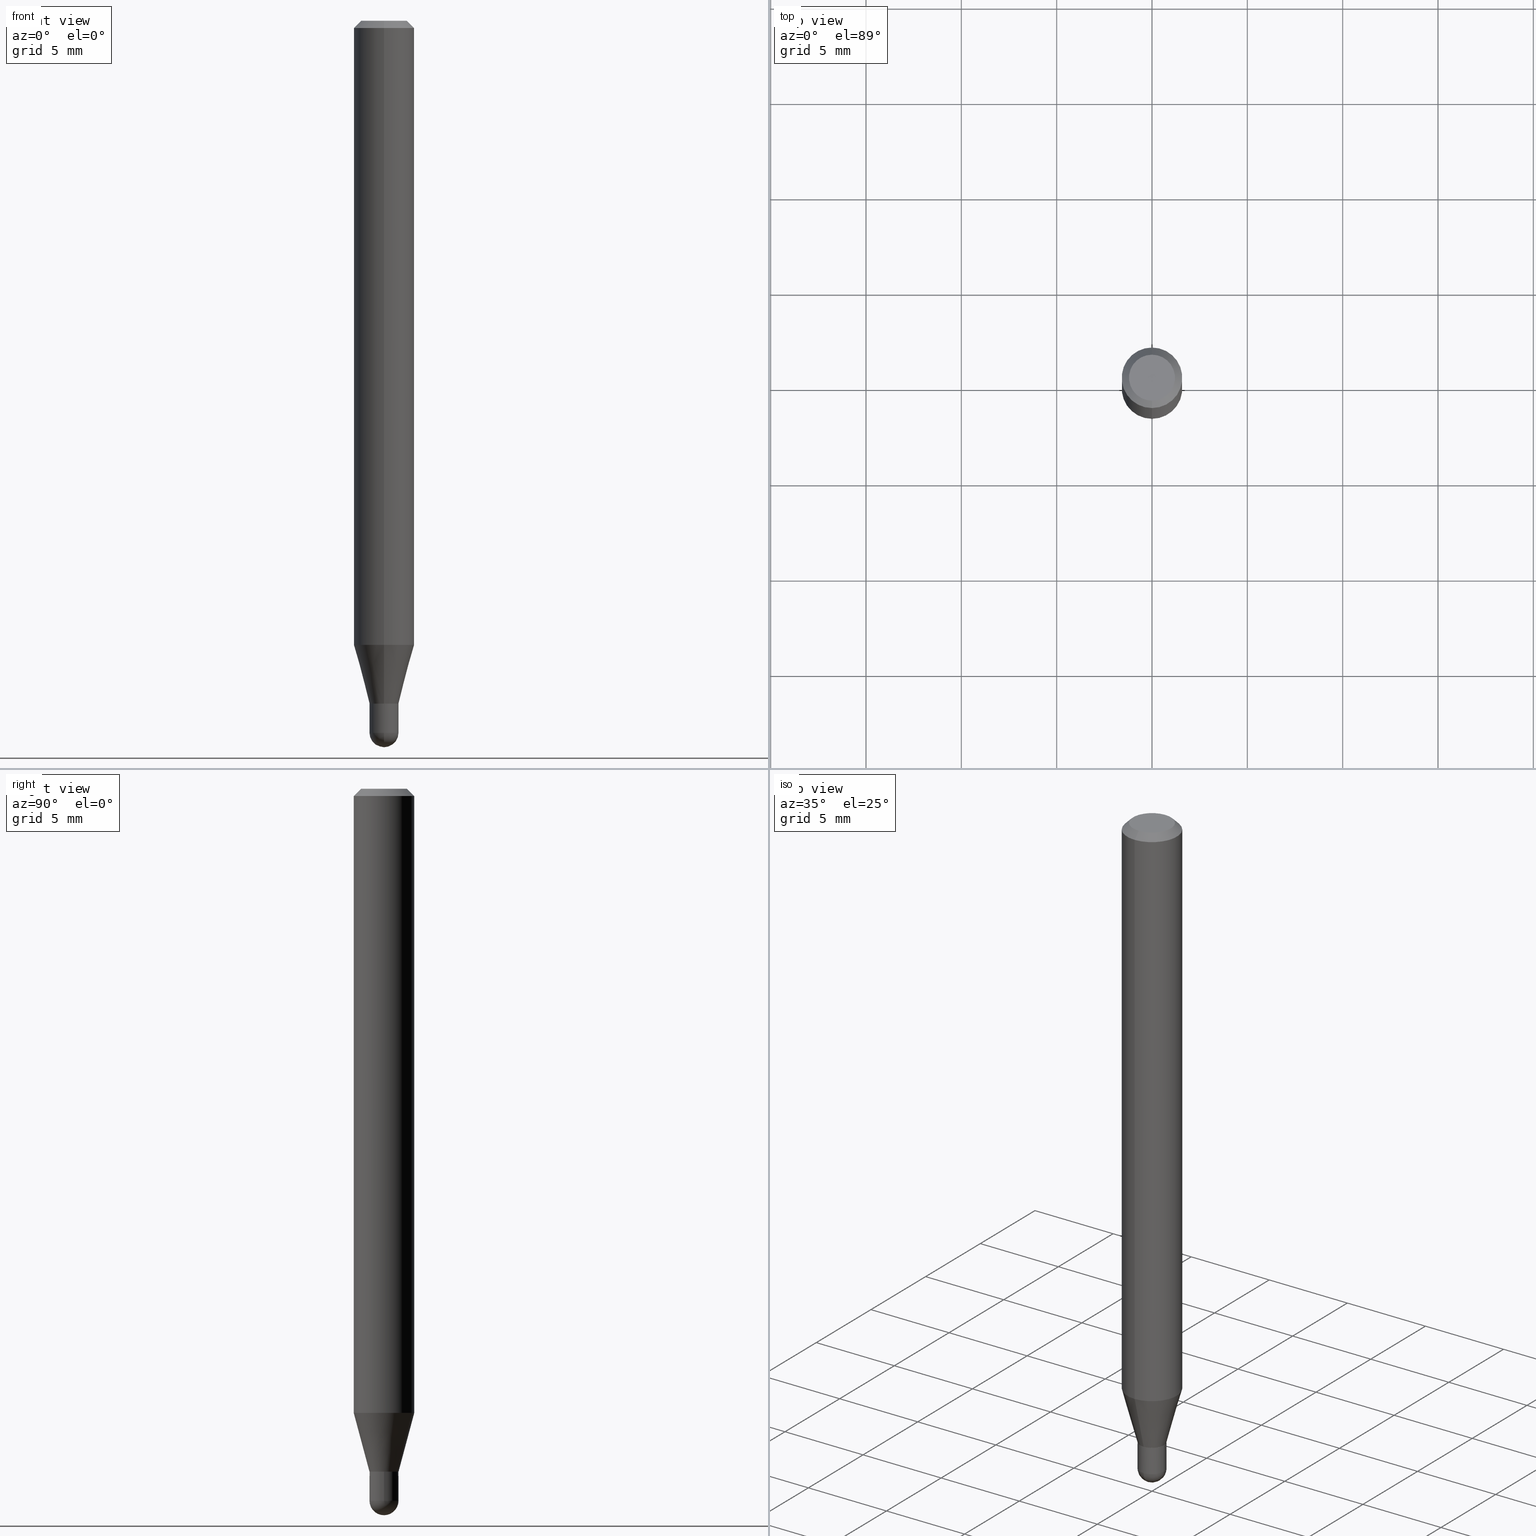
[diagram: canonical four-view strip — front | top / right | iso, engineering-drawing reading convention]
A machine part, canonical four-view strip (front | top / right | iso — engineering-drawing reading convention). The complete STEP part file that produces these views, byte-faithful:
ISO-10303-21;
HEADER;
FILE_DESCRIPTION (( 'STEP AP203' ),
    '1' );
FILE_NAME ('04372.STEP',
    '2024-03-08T18:57:41',
    ( '' ),
    ( '' ),
    'SwSTEP 2.0',
    'SolidWorks 2023',
    '' );
FILE_SCHEMA (( 'CONFIG_CONTROL_DESIGN' ));
ENDSEC;

DATA;
#1 = FACE_OUTER_BOUND ( 'NONE', #63, .T. ) ;
#2 = EDGE_CURVE ( 'NONE', #340, #117, #421, .T. ) ;
#3 = AXIS2_PLACEMENT_3D ( 'NONE', #309, #262, #409 ) ;
#4 = CC_DESIGN_APPROVAL ( #99, ( #46 ) ) ;
#5 = CARTESIAN_POINT ( 'NONE',  ( 3.446897935347290191E-29, -4.921229123411984992E-15, -1.409500000000000419 ) ) ;
#6 = ADVANCED_FACE ( 'NONE', ( #381 ), #244, .T. ) ;
#7 = PERSON_AND_ORGANIZATION_ROLE ( 'design_supplier' ) ;
#8 = CARTESIAN_POINT ( 'NONE',  ( 0.03000000000000000583, -2.094888803305880457E-16, 1.462853032738781053E-30 ) ) ;
#9 = AXIS2_PLACEMENT_3D ( 'NONE', #52, #130, #48 ) ;
#10 = AXIS2_PLACEMENT_3D ( 'NONE', #388, #433, #124 ) ;
#11 = FACE_OUTER_BOUND ( 'NONE', #322, .T. ) ;
#12 = ADVANCED_FACE ( 'NONE', ( #25 ), #190, .T. ) ;
#13 = ORIENTED_EDGE ( 'NONE', *, *, #150, .T. ) ;
#14 = CARTESIAN_POINT ( 'NONE',  ( -4.364351673553602629E-16, -0.06250000000000452416, -1.288708348754016741 ) ) ;
#15 = ORIENTED_EDGE ( 'NONE', *, *, #466, .T. ) ;
#16 = ORIENTED_EDGE ( 'NONE', *, *, #194, .F. ) ;
#17 = EDGE_CURVE ( 'NONE', #108, #506, #70, .T. ) ;
#18 = LINE ( 'NONE', #137, #19 ) ;
#19 = VECTOR ( 'NONE', #256, 39.37007874015748143 ) ;
#20 = CARTESIAN_POINT ( 'NONE',  ( 2.113864638886649494E-16, 0.02949999999999507877, -1.410000000000000586 ) ) ;
#21 = COORDINATED_UNIVERSAL_TIME_OFFSET ( 5, 0, .BEHIND. ) ;
#22 = CARTESIAN_POINT ( 'NONE',  ( -4.364351673553912750E-16, -0.06250000000000005551, -0.01499999999999984852 ) ) ;
#23 = DIRECTION ( 'NONE',  ( -2.445468806185136597E-29, 3.491481338843145583E-15, 1.000000000000000000 ) ) ;
#24 = EDGE_CURVE ( 'NONE', #336, #252, #240, .T. ) ;
#25 = FACE_OUTER_BOUND ( 'NONE', #333, .T. ) ;
#26 = CARTESIAN_POINT ( 'NONE',  ( 1.601803669959520186E-45, -2.286938290152406368E-31, -6.550069990919144939E-17 ) ) ;
#27 = VECTOR ( 'NONE', #326, 39.37007874015748143 ) ;
#28 = ORIENTED_EDGE ( 'NONE', *, *, #148, .T. ) ;
#29 = DIRECTION ( 'NONE',  ( -6.982962677686266711E-15, -1.000000000000000000, 3.491471531331667056E-15 ) ) ;
#30 = CARTESIAN_POINT ( 'NONE',  ( 2.094888803306224597E-16, 0.02999999999999507921, -1.410000000000000364 ) ) ;
#31 = VERTEX_POINT ( 'NONE', #349 ) ;
#32 = ADVANCED_FACE ( 'NONE', ( #346 ), #314, .F. ) ;
#33 = CYLINDRICAL_SURFACE ( 'NONE', #202, 0.03000000000000033890 ) ;
#34 = DIRECTION ( 'NONE',  ( -2.445475654733798160E-29, 3.491471531331666661E-15, 1.000000000000000000 ) ) ;
#35 = CLOSED_SHELL ( 'NONE', ( #394, #112, #199, #255, #212 ) ) ;
#36 = AXIS2_PLACEMENT_3D ( 'NONE', #284, #357, #472 ) ;
#37 = CARTESIAN_POINT ( 'NONE',  ( 0.000000000000000000, 0.000000000000000000, 0.000000000000000000 ) ) ;
#38 = CARTESIAN_POINT ( 'NONE',  ( 0.000000000000000000, 0.000000000000000000, 0.000000000000000000 ) ) ;
#39 = CARTESIAN_POINT ( 'NONE',  ( 4.440892098500625669E-16, 0.06250000000000000000, -2.182169707082291663E-16 ) ) ;
#40 = ADVANCED_FACE ( 'NONE', ( #307 ), #226, .T. ) ;
#41 = DIRECTION ( 'NONE',  ( -6.982962677686265922E-15, -1.000000000000000000, 0.000000000000000000 ) ) ;
#42 = VERTEX_POINT ( 'NONE', #492 ) ;
#43 = LOCAL_TIME ( 13, 57, 41.00000000000000000, #476 ) ;
#44 = DATE_AND_TIME ( #210, #216 ) ;
#45 = CARTESIAN_POINT ( 'NONE',  ( 3.286260152890810419E-16, 0.02999999999999555106, -1.409999999999999920 ) ) ;
#46 = PRODUCT_DEFINITION ( 'UNKNOWN', '', #313, #397 ) ;
#47 = DIRECTION ( 'NONE',  ( 0.000000000000000000, 0.000000000000000000, 1.000000000000000000 ) ) ;
#48 = DIRECTION ( 'NONE',  ( 1.000000000000000000, -6.982962677686266711E-15, 0.000000000000000000 ) ) ;
#49 = AXIS2_PLACEMENT_3D ( 'NONE', #291, #126, #368 ) ;
#50 = VECTOR ( 'NONE', #278, 39.37007874015748143 ) ;
#51 = CARTESIAN_POINT ( 'NONE',  ( 3.448120673174657016E-29, -4.922974859177651471E-15, -1.410000000000000586 ) ) ;
#52 = CARTESIAN_POINT ( 'NONE',  ( 3.594839145092151380E-29, -5.132477568099425596E-15, -1.470000000000000417 ) ) ;
#53 = ORIENTED_EDGE ( 'NONE', *, *, #89, .T. ) ;
#54 = DIRECTION ( 'NONE',  ( -2.445475654733798440E-29, 3.491471531331666661E-15, 1.000000000000000000 ) ) ;
#55 = ORIENTED_EDGE ( 'NONE', *, *, #444, .F. ) ;
#56 = CARTESIAN_POINT ( 'NONE',  ( 4.440892098500942692E-16, 0.06249999999999995143, -0.01500000000000028394 ) ) ;
#57 = ORIENTED_EDGE ( 'NONE', *, *, #243, .F. ) ;
#58 = CC_DESIGN_PERSON_AND_ORGANIZATION_ASSIGNMENT ( #323, #107, ( #264 ) ) ;
#59 = AXIS2_PLACEMENT_3D ( 'NONE', #412, #454, #238 ) ;
#60 = CIRCLE ( 'NONE', #67, 0.02949999999999999845 ) ;
#61 = ORIENTED_EDGE ( 'NONE', *, *, #504, .T. ) ;
#62 = CARTESIAN_POINT ( 'NONE',  ( 0.000000000000000000, 0.000000000000000000, 0.000000000000000000 ) ) ;
#63 = EDGE_LOOP ( 'NONE', ( #68, #61, #425, #88 ) ) ;
#64 = EDGE_CURVE ( 'NONE', #42, #367, #374, .T. ) ;
#65 = VERTEX_POINT ( 'NONE', #406 ) ;
#66 = CIRCLE ( 'NONE', #200, 0.04749999999999999362 ) ;
#67 = AXIS2_PLACEMENT_3D ( 'NONE', #411, #445, #448 ) ;
#68 = ORIENTED_EDGE ( 'NONE', *, *, #484, .F. ) ;
#69 = DATE_AND_TIME ( #281, #43 ) ;
#70 = LINE ( 'NONE', #347, #209 ) ;
#71 = LENGTH_MEASURE_WITH_UNIT ( LENGTH_MEASURE( 0.02539999999999999897 ), #354 );
#72 = ORIENTED_EDGE ( 'NONE', *, *, #484, .T. ) ;
#73 = CC_DESIGN_PERSON_AND_ORGANIZATION_ASSIGNMENT ( #449, #134, ( #408 ) ) ;
#74 =( CONVERSION_BASED_UNIT ( 'INCH', #71 ) LENGTH_UNIT ( ) NAMED_UNIT ( #213 ) );
#75 = CARTESIAN_POINT ( 'NONE',  ( -2.059973989917103533E-16, -0.02950000000000492159, -1.410000000000000586 ) ) ;
#76 = CIRCLE ( 'NONE', #469, 0.03000000000000000583 ) ;
#77 = CALENDAR_DATE ( 2024, 8, 3 ) ;
#78 = DIRECTION ( 'NONE',  ( 1.000000000000000000, -6.982962677686268288E-15, 0.000000000000000000 ) ) ;
#79 = ORIENTED_EDGE ( 'NONE', *, *, #24, .T. ) ;
#80 = PERSON_AND_ORGANIZATION_ROLE ( 'creator' ) ;
#81 = SPHERICAL_SURFACE ( 'NONE', #337, 0.02999999999999997807 ) ;
#82 = CC_DESIGN_DATE_AND_TIME_ASSIGNMENT ( #69, #196, ( #46 ) ) ;
#83 = UNCERTAINTY_MEASURE_WITH_UNIT (LENGTH_MEASURE( 1.000000000000000082E-05 ), #74, 'distance_accuracy_value', 'NONE');
#84 = APPROVAL_DATE_TIME ( #44, #510 ) ;
#85 = CYLINDRICAL_SURFACE ( 'NONE', #305, 0.03000000000000000583 ) ;
#86 = AXIS2_PLACEMENT_3D ( 'NONE', #500, #34, #145 ) ;
#87 = AXIS2_PLACEMENT_3D ( 'NONE', #38, #47, #129 ) ;
#88 = ORIENTED_EDGE ( 'NONE', *, *, #64, .F. ) ;
#89 = EDGE_CURVE ( 'NONE', #169, #42, #217, .T. ) ;
#90 = DIRECTION ( 'NONE',  ( -2.445468806185136597E-29, 3.491481338843145583E-15, 1.000000000000000000 ) ) ;
#91 = CARTESIAN_POINT ( 'NONE',  ( 3.668213482100713880E-31, -5.237207296997522795E-17, -0.01500000000000006710 ) ) ;
#92 = EDGE_LOOP ( 'NONE', ( #28, #101 ) ) ;
#93 = CONICAL_SURFACE ( 'NONE', #160, 0.03000000000000047420, 0.2617993877991573459 ) ;
#94 = CARTESIAN_POINT ( 'NONE',  ( 3.448120673174655335E-29, -4.922974859177649894E-15, -1.409999999999999920 ) ) ;
#95 = DIRECTION ( 'NONE',  ( -6.982962677686265922E-15, -1.000000000000000000, 0.000000000000000000 ) ) ;
#96 = ORIENTED_EDGE ( 'NONE', *, *, #139, .F. ) ;
#97 = DIRECTION ( 'NONE',  ( -6.982962677686266711E-15, -1.000000000000000000, 3.491471531331667056E-15 ) ) ;
#98 = CARTESIAN_POINT ( 'NONE',  ( 3.594839145092151380E-29, -5.132477568099425596E-15, -1.470000000000000417 ) ) ;
#99 = APPROVAL ( #463, 'UNSPECIFIED' ) ;
#100 = ORIENTED_EDGE ( 'NONE', *, *, #495, .T. ) ;
#101 = ORIENTED_EDGE ( 'NONE', *, *, #462, .T. ) ;
#102 = AXIS2_PLACEMENT_3D ( 'NONE', #30, #497, #422 ) ;
#103 = LINE ( 'NONE', #494, #400 ) ;
#104 = ORIENTED_EDGE ( 'NONE', *, *, #142, .F. ) ;
#105 = ADVANCED_FACE ( 'NONE', ( #365 ), #261, .F. ) ;
#106 = DIRECTION ( 'NONE',  ( -2.445475654733798440E-29, 3.491471531331666661E-15, 1.000000000000000000 ) ) ;
#107 = PERSON_AND_ORGANIZATION_ROLE ( 'classification_officer' ) ;
#108 = VERTEX_POINT ( 'NONE', #135 ) ;
#109 = DIRECTION ( 'NONE',  ( -2.445475654733798440E-29, 3.491471531331666661E-15, 1.000000000000000000 ) ) ;
#110 = ORIENTED_EDGE ( 'NONE', *, *, #441, .F. ) ;
#111 = FACE_OUTER_BOUND ( 'NONE', #419, .T. ) ;
#112 = ADVANCED_FACE ( 'NONE', ( #11 ), #329, .T. ) ;
#113 = CIRCLE ( 'NONE', #59, 0.06250000000000000000 ) ;
#114 = VECTOR ( 'NONE', #123, 39.37007874015748143 ) ;
#115 = ORIENTED_EDGE ( 'NONE', *, *, #424, .F. ) ;
#116 = EDGE_CURVE ( 'NONE', #369, #252, #236, .T. ) ;
#117 = VERTEX_POINT ( 'NONE', #14 ) ;
#118 = APPROVAL_ROLE ( '' ) ;
#119 = LINE ( 'NONE', #39, #152 ) ;
#120 = DIRECTION ( 'NONE',  ( 5.024295867788190974E-15, 0.7071067811865681119, 0.7071067811865270336 ) ) ;
#121 = ORIENTED_EDGE ( 'NONE', *, *, #174, .F. ) ;
#122 = DIRECTION ( 'NONE',  ( -2.445468806185136597E-29, 3.491481338843145583E-15, 1.000000000000000000 ) ) ;
#123 = DIRECTION ( 'NONE',  ( -2.445468806185136877E-29, 3.491481338843145188E-15, 1.000000000000000000 ) ) ;
#124 = DIRECTION ( 'NONE',  ( -6.982962677686265922E-15, -1.000000000000000000, 0.000000000000000000 ) ) ;
#125 = DIRECTION ( 'NONE',  ( -2.445475654733798440E-29, 3.491471531331666661E-15, 1.000000000000000000 ) ) ;
#126 = DIRECTION ( 'NONE',  ( -2.445475654733798440E-29, 3.491471531331666661E-15, 1.000000000000000000 ) ) ;
#127 = ORIENTED_EDGE ( 'NONE', *, *, #2, .F. ) ;
#128 = ADVANCED_FACE ( 'NONE', ( #172 ), #93, .T. ) ;
#129 = DIRECTION ( 'NONE',  ( 1.000000000000000000, 0.000000000000000000, 0.000000000000000000 ) ) ;
#130 = DIRECTION ( 'NONE',  ( -2.445468806185136597E-29, 3.491481338843145583E-15, 1.000000000000000000 ) ) ;
#131 = ORIENTED_EDGE ( 'NONE', *, *, #424, .T. ) ;
#132 = CONICAL_SURFACE ( 'NONE', #288, 0.02949999999999999845, 0.7853981633974739252 ) ;
#133 = CARTESIAN_POINT ( 'NONE',  ( 3.448120673174655335E-29, -4.922974859177649894E-15, -1.409999999999999920 ) ) ;
#134 = PERSON_AND_ORGANIZATION_ROLE ( 'design_owner' ) ;
#135 = CARTESIAN_POINT ( 'NONE',  ( 3.840629472727447874E-16, 0.04749999999999999362, -2.313455976474456035E-16 ) ) ;
#136 = VERTEX_POINT ( 'NONE', #20 ) ;
#137 = CARTESIAN_POINT ( 'NONE',  ( 2.131628207280678885E-16, 0.02999999999999555106, -1.409999999999999920 ) ) ;
#138 = CARTESIAN_POINT ( 'NONE',  ( 3.592273646224612654E-29, -5.136151508496865947E-15, -1.470000000000000195 ) ) ;
#139 = EDGE_CURVE ( 'NONE', #451, #136, #318, .T. ) ;
#140 = ORIENTED_EDGE ( 'NONE', *, *, #413, .F. ) ;
#141 = DIRECTION ( 'NONE',  ( 1.000000000000000000, -6.982962677686266711E-15, 0.000000000000000000 ) ) ;
#142 = EDGE_CURVE ( 'NONE', #176, #506, #113, .T. ) ;
#143 = ORIENTED_EDGE ( 'NONE', *, *, #219, .F. ) ;
#144 = CIRCLE ( 'NONE', #320, 0.03000000000000019665 ) ;
#145 = DIRECTION ( 'NONE',  ( -6.982962677686265922E-15, -1.000000000000000000, 3.491471531331666661E-15 ) ) ;
#146 = APPLICATION_PROTOCOL_DEFINITION ( 'international standard', 'config_control_design', 1994, #228 ) ;
#147 = EDGE_LOOP ( 'NONE', ( #96, #110 ) ) ;
#148 = EDGE_CURVE ( 'NONE', #108, #220, #66, .T. ) ;
#149 = ORIENTED_EDGE ( 'NONE', *, *, #89, .F. ) ;
#150 = EDGE_CURVE ( 'NONE', #117, #176, #103, .T. ) ;
#151 = CLOSED_SHELL ( 'NONE', ( #378, #231, #40, #157, #290, #128, #12, #6, #280, #32, #447, #105 ) ) ;
#152 = VECTOR ( 'NONE', #201, 39.37007874015748143 ) ;
#153 = CC_DESIGN_APPROVAL ( #276, ( #264 ) ) ;
#154 = VERTEX_POINT ( 'NONE', #308 ) ;
#155 = DIRECTION ( 'NONE',  ( -2.445468806185136597E-29, 3.491481338843145583E-15, 1.000000000000000000 ) ) ;
#156 = CARTESIAN_POINT ( 'NONE',  ( -3.773273898774340269E-16, -0.04749999999999999362, 1.003441978290627047E-16 ) ) ;
#157 = ADVANCED_FACE ( 'NONE', ( #460 ), #379, .T. ) ;
#158 = PERSON_AND_ORGANIZATION ( #475, #227 ) ;
#159 = DIRECTION ( 'NONE',  ( 2.445475654733798160E-29, -3.491471531331666661E-15, -1.000000000000000000 ) ) ;
#160 = AXIS2_PLACEMENT_3D ( 'NONE', #300, #332, #339 ) ;
#161 = APPROVAL_PERSON_ORGANIZATION ( #186, #99, #118 ) ;
#162 =( NAMED_UNIT ( * ) PLANE_ANGLE_UNIT ( ) SI_UNIT ( $, .RADIAN. ) );
#163 = DIRECTION ( 'NONE',  ( -6.982962677686265922E-15, -1.000000000000000000, 0.000000000000000000 ) ) ;
#164 = SECURITY_CLASSIFICATION_LEVEL ( 'unclassified' ) ;
#165 = DIRECTION ( 'NONE',  ( 1.000000000000000000, -6.982962677686266711E-15, 4.876176775795935793E-29 ) ) ;
#166 = DIRECTION ( 'NONE',  ( -2.445468806185136597E-29, 3.491481338843145583E-15, 1.000000000000000000 ) ) ;
#167 = EDGE_CURVE ( 'NONE', #117, #503, #417, .T. ) ;
#168 = CIRCLE ( 'NONE', #179, 0.02999999999999999889 ) ;
#169 = VERTEX_POINT ( 'NONE', #274 ) ;
#170 = MANIFOLD_SOLID_BREP ( 'Body-Move/Copy2[1]', #35 ) ;
#171 = DIRECTION ( 'NONE',  ( -6.982962677686265922E-15, -1.000000000000000000, 0.000000000000000000 ) ) ;
#172 = FACE_OUTER_BOUND ( 'NONE', #353, .T. ) ;
#173 = EDGE_LOOP ( 'NONE', ( #225, #79, #296, #140 ) ) ;
#174 = EDGE_CURVE ( 'NONE', #503, #117, #251, .T. ) ;
#175 = DIRECTION ( 'NONE',  ( 1.000000000000000000, -7.105427357601001070E-15, 4.926315508542082329E-29 ) ) ;
#176 = VERTEX_POINT ( 'NONE', #22 ) ;
#177 = LOCAL_TIME ( 13, 57, 41.00000000000000000, #384 ) ;
#178 = AXIS2_PLACEMENT_3D ( 'NONE', #62, #109, #191 ) ;
#179 = AXIS2_PLACEMENT_3D ( 'NONE', #362, #155, #78 ) ;
#180 = CIRCLE ( 'NONE', #350, 0.04749999999999999362 ) ;
#181 = DIRECTION ( 'NONE',  ( -2.445475654733798440E-29, 3.491471531331666661E-15, 1.000000000000000000 ) ) ;
#182 = ORIENTED_EDGE ( 'NONE', *, *, #495, .F. ) ;
#183 = EDGE_CURVE ( 'NONE', #65, #169, #418, .T. ) ;
#184 = DIRECTION ( 'NONE',  ( -6.982962677686265922E-15, -1.000000000000000000, 4.370956789862821150E-15 ) ) ;
#185 = ORIENTED_EDGE ( 'NONE', *, *, #2, .T. ) ;
#186 = PERSON_AND_ORGANIZATION ( #475, #227 ) ;
#187 = AXIS2_PLACEMENT_3D ( 'NONE', #294, #452, #370 ) ;
#188 = AXIS2_PLACEMENT_3D ( 'NONE', #321, #159, #245 ) ;
#189 = MANIFOLD_SOLID_BREP ( 'Body-Move/Copy2[2]', #151 ) ;
#190 = CYLINDRICAL_SURFACE ( 'NONE', #295, 0.06250000000000000000 ) ;
#191 = DIRECTION ( 'NONE',  ( -6.982962677686265922E-15, -1.000000000000000000, 3.491471531331666661E-15 ) ) ;
#192 = APPROVAL_STATUS ( 'not_yet_approved' ) ;
#193 = EDGE_LOOP ( 'NONE', ( #100, #131, #257, #127 ) ) ;
#194 = EDGE_CURVE ( 'NONE', #220, #176, #302, .T. ) ;
#195 = ADVANCED_BREP_SHAPE_REPRESENTATION ( '04372', ( #170, #189, #87 ), #382 ) ;
#196 = DATE_TIME_ROLE ( 'creation_date' ) ;
#197 = FACE_OUTER_BOUND ( 'NONE', #268, .T. ) ;
#198 = DIRECTION ( 'NONE',  ( -2.445475654733798160E-29, 3.491471531331666661E-15, 1.000000000000000000 ) ) ;
#199 = ADVANCED_FACE ( 'NONE', ( #111 ), #427, .F. ) ;
#200 = AXIS2_PLACEMENT_3D ( 'NONE', #26, #383, #29 ) ;
#201 = DIRECTION ( 'NONE',  ( -2.445475654733798160E-29, 3.491471531331666661E-15, 1.000000000000000000 ) ) ;
#202 = AXIS2_PLACEMENT_3D ( 'NONE', #477, #282, #434 ) ;
#203 = ORIENTED_EDGE ( 'NONE', *, *, #174, .T. ) ;
#204 = CARTESIAN_POINT ( 'NONE',  ( 2.096101070492640071E-16, 0.02949999999999507877, -1.410000000000000586 ) ) ;
#205 = DATE_AND_TIME ( #77, #237 ) ;
#206 = CARTESIAN_POINT ( 'NONE',  ( -2.094888803305568117E-16, -0.03000000000000539388, -1.409999999999999920 ) ) ;
#207 = CC_DESIGN_APPROVAL ( #510, ( #313 ) ) ;
#208 = LINE ( 'NONE', #8, #246 ) ;
#209 = VECTOR ( 'NONE', #499, 39.37007874015748143 ) ;
#210 = CALENDAR_DATE ( 2024, 8, 3 ) ;
#211 = DIRECTION ( 'NONE',  ( -2.445468806185136597E-29, 3.491481338843145583E-15, 1.000000000000000000 ) ) ;
#212 = ADVANCED_FACE ( 'NONE', ( #197 ), #233, .T. ) ;
#213 = DIMENSIONAL_EXPONENTS ( 1.000000000000000000, 0.000000000000000000, 0.000000000000000000, 0.000000000000000000, 0.000000000000000000, 0.000000000000000000, 0.000000000000000000 ) ;
#214 = VERTEX_POINT ( 'NONE', #440 ) ;
#215 = DIRECTION ( 'NONE',  ( 1.000000000000000000, -6.982962677686266711E-15, 0.000000000000000000 ) ) ;
#216 = LOCAL_TIME ( 13, 57, 41.00000000000000000, #436 ) ;
#217 = CIRCLE ( 'NONE', #9, 0.03000000000000000583 ) ;
#218 = AXIS2_PLACEMENT_3D ( 'NONE', #51, #373, #491 ) ;
#219 = EDGE_CURVE ( 'NONE', #136, #252, #287, .T. ) ;
#220 = VERTEX_POINT ( 'NONE', #156 ) ;
#221 = DIRECTION ( 'NONE',  ( 7.105427357601001070E-15, 1.000000000000000000, 0.000000000000000000 ) ) ;
#222 = ORIENTED_EDGE ( 'NONE', *, *, #148, .F. ) ;
#223 = DIRECTION ( 'NONE',  ( -6.982962677686265922E-15, -1.000000000000000000, 3.483106191921935554E-15 ) ) ;
#224 = DATE_AND_TIME ( #464, #177 ) ;
#225 = ORIENTED_EDGE ( 'NONE', *, *, #466, .F. ) ;
#226 = CONICAL_SURFACE ( 'NONE', #3, 0.06250000000000000000, 0.7853981633974483900 ) ;
#227 = ORGANIZATION ( 'UNSPECIFIED', 'UNSPECIFIED', '' ) ;
#228 = APPLICATION_CONTEXT ( 'configuration controlled 3d designs of mechanical parts and assemblies' ) ;
#229 = SHAPE_DEFINITION_REPRESENTATION ( #331, #195 ) ;
#230 = ORIENTED_EDGE ( 'NONE', *, *, #183, .F. ) ;
#231 = ADVANCED_FACE ( 'NONE', ( #315 ), #132, .T. ) ;
#232 = EDGE_LOOP ( 'NONE', ( #496, #301, #235, #376 ) ) ;
#233 = CYLINDRICAL_SURFACE ( 'NONE', #458, 0.03000000000000000583 ) ;
#234 = PERSON_AND_ORGANIZATION ( #475, #227 ) ;
#235 = ORIENTED_EDGE ( 'NONE', *, *, #116, .F. ) ;
#236 = CIRCLE ( 'NONE', #49, 0.03000000000000019665 ) ;
#237 = LOCAL_TIME ( 13, 57, 41.00000000000000000, #391 ) ;
#238 = DIRECTION ( 'NONE',  ( -6.982962677686265922E-15, -1.000000000000000000, 3.483106191921935554E-15 ) ) ;
#239 = EDGE_LOOP ( 'NONE', ( #16, #222, #429, #330 ) ) ;
#240 = LINE ( 'NONE', #461, #438 ) ;
#241 = DIRECTION ( 'NONE',  ( -2.445475654733798440E-29, 3.491471531331666661E-15, 1.000000000000000000 ) ) ;
#242 = ORIENTED_EDGE ( 'NONE', *, *, #334, .F. ) ;
#243 = EDGE_CURVE ( 'NONE', #503, #506, #119, .T. ) ;
#244 = CONICAL_SURFACE ( 'NONE', #457, 0.06250000000000000000, 0.7853981633974483900 ) ;
#245 = DIRECTION ( 'NONE',  ( 6.982962677686265922E-15, 1.000000000000000000, -3.491471531331666661E-15 ) ) ;
#246 = VECTOR ( 'NONE', #359, 39.37007874015748143 ) ;
#247 = LINE ( 'NONE', #250, #114 ) ;
#248 = FACE_OUTER_BOUND ( 'NONE', #410, .T. ) ;
#249 = PERSON_AND_ORGANIZATION ( #475, #227 ) ;
#250 = CARTESIAN_POINT ( 'NONE',  ( -0.03000000000000000583, 2.131628207280300972E-16, -1.475680527076471882E-30 ) ) ;
#251 = CIRCLE ( 'NONE', #426, 0.06250000000000000000 ) ;
#252 = VERTEX_POINT ( 'NONE', #396 ) ;
#253 = DIRECTION ( 'NONE',  ( 1.000000000000000000, -6.982962677686266711E-15, 0.000000000000000000 ) ) ;
#254 = ORIENTED_EDGE ( 'NONE', *, *, #351, .F. ) ;
#255 = ADVANCED_FACE ( 'NONE', ( #1 ), #81, .T. ) ;
#256 = DIRECTION ( 'NONE',  ( 1.839019923739648830E-15, 0.2588190451025317862, 0.9659258262890653146 ) ) ;
#257 = ORIENTED_EDGE ( 'NONE', *, *, #167, .F. ) ;
#258 = CARTESIAN_POINT ( 'NONE',  ( 3.592273646224612654E-29, -5.136151508496865947E-15, -1.470000000000000195 ) ) ;
#259 = ORIENTED_EDGE ( 'NONE', *, *, #183, .T. ) ;
#260 = CARTESIAN_POINT ( 'NONE',  ( 3.592273646224612654E-29, -5.136151508496865947E-15, -1.470000000000000195 ) ) ;
#261 = CYLINDRICAL_SURFACE ( 'NONE', #187, 0.03000000000000033890 ) ;
#262 = DIRECTION ( 'NONE',  ( 2.445475654733798440E-29, -3.491471531331666661E-15, -1.000000000000000000 ) ) ;
#263 = ORIENTED_EDGE ( 'NONE', *, *, #116, .T. ) ;
#264 = SECURITY_CLASSIFICATION ( '', '', #164 ) ;
#265 = EDGE_CURVE ( 'NONE', #169, #214, #208, .T. ) ;
#266 = AXIS2_PLACEMENT_3D ( 'NONE', #91, #338, #223 ) ;
#267 = APPROVAL_ROLE ( '' ) ;
#268 = EDGE_LOOP ( 'NONE', ( #242, #286, #259, #453, #443 ) ) ;
#269 = CARTESIAN_POINT ( 'NONE',  ( 3.594839145092151380E-29, -5.132477568099425596E-15, -1.470000000000000417 ) ) ;
#270 = ORIENTED_EDGE ( 'NONE', *, *, #142, .T. ) ;
#271 = CALENDAR_DATE ( 2024, 8, 3 ) ;
#272 = ORIENTED_EDGE ( 'NONE', *, *, #24, .F. ) ;
#273 = CIRCLE ( 'NONE', #328, 0.03000000000000047420 ) ;
#274 = CARTESIAN_POINT ( 'NONE',  ( 0.03000000000000000583, -5.237222008264718177E-15, -1.470000000000000417 ) ) ;
#275 = CARTESIAN_POINT ( 'NONE',  ( -2.094888803305568117E-16, -0.03000000000000539388, -1.409999999999999920 ) ) ;
#276 = APPROVAL ( #192, 'UNSPECIFIED' ) ;
#277 = LINE ( 'NONE', #75, #50 ) ;
#278 = DIRECTION ( 'NONE',  ( -4.937700262164674260E-15, -0.7071067811865632269, 0.7071067811865319186 ) ) ;
#279 = CONICAL_SURFACE ( 'NONE', #218, 0.02949999999999999845, 0.7853981633974739252 ) ;
#280 = ADVANCED_FACE ( 'NONE', ( #317 ), #474, .F. ) ;
#281 = CALENDAR_DATE ( 2024, 8, 3 ) ;
#282 = DIRECTION ( 'NONE',  ( -2.445475654733798440E-29, 3.491471531331666661E-15, 1.000000000000000000 ) ) ;
#283 = APPROVAL_STATUS ( 'not_yet_approved' ) ;
#284 = CARTESIAN_POINT ( 'NONE',  ( 3.448111016721043229E-29, -4.922988687768836490E-15, -1.410000000000000364 ) ) ;
#285 = EDGE_CURVE ( 'NONE', #451, #369, #277, .T. ) ;
#286 = ORIENTED_EDGE ( 'NONE', *, *, #405, .T. ) ;
#287 = LINE ( 'NONE', #204, #390 ) ;
#288 = AXIS2_PLACEMENT_3D ( 'NONE', #355, #241, #41 ) ;
#289 = DIRECTION ( 'NONE',  ( -6.982962677686265922E-15, -1.000000000000000000, 0.000000000000000000 ) ) ;
#290 = ADVANCED_FACE ( 'NONE', ( #392 ), #403, .T. ) ;
#291 = CARTESIAN_POINT ( 'NONE',  ( 3.446897935347290191E-29, -4.921229123411984992E-15, -1.409500000000000419 ) ) ;
#292 = ORIENTED_EDGE ( 'NONE', *, *, #243, .T. ) ;
#293 = CARTESIAN_POINT ( 'NONE',  ( 1.601803669959520186E-45, -2.286938290152406368E-31, -6.550069990919144939E-17 ) ) ;
#294 = CARTESIAN_POINT ( 'NONE',  ( 0.000000000000000000, 0.000000000000000000, 0.000000000000000000 ) ) ;
#295 = AXIS2_PLACEMENT_3D ( 'NONE', #423, #387, #385 ) ;
#296 = ORIENTED_EDGE ( 'NONE', *, *, #351, .T. ) ;
#297 = CARTESIAN_POINT ( 'NONE',  ( 4.440892098500938748E-16, 0.06249999999999548278, -1.288708348754017408 ) ) ;
#298 = ORIENTED_EDGE ( 'NONE', *, *, #334, .T. ) ;
#299 = CARTESIAN_POINT ( 'NONE',  ( -2.059973989917103533E-16, -0.02950000000000492159, -1.410000000000000586 ) ) ;
#300 = CARTESIAN_POINT ( 'NONE',  ( 3.448120673174655335E-29, -4.922974859177649894E-15, -1.409999999999999920 ) ) ;
#301 = ORIENTED_EDGE ( 'NONE', *, *, #219, .T. ) ;
#302 = LINE ( 'NONE', #502, #375 ) ;
#303 = APPROVAL_DATE_TIME ( #306, #276 ) ;
#304 = EDGE_LOOP ( 'NONE', ( #395, #446, #270, #377 ) ) ;
#305 = AXIS2_PLACEMENT_3D ( 'NONE', #402, #211, #165 ) ;
#306 = DATE_AND_TIME ( #271, #399 ) ;
#307 = FACE_OUTER_BOUND ( 'NONE', #304, .T. ) ;
#308 = CARTESIAN_POINT ( 'NONE',  ( -0.02999999999999999889, -4.814570307206100404E-15, -1.410000000000000364 ) ) ;
#309 = CARTESIAN_POINT ( 'NONE',  ( 3.668213482100713880E-31, -5.237207296997522795E-17, -0.01500000000000006710 ) ) ;
#310 = ORIENTED_EDGE ( 'NONE', *, *, #167, .T. ) ;
#311 = APPROVAL_PERSON_ORGANIZATION ( #348, #510, #401 ) ;
#312 = CIRCLE ( 'NONE', #480, 0.02999999999999997807 ) ;
#313 = PRODUCT_DEFINITION_FORMATION_WITH_SPECIFIED_SOURCE ( 'ANY', '', #408, .NOT_KNOWN. ) ;
#314 = PLANE ( 'NONE',  #86 ) ;
#315 = FACE_OUTER_BOUND ( 'NONE', #232, .T. ) ;
#316 = EDGE_CURVE ( 'NONE', #214, #154, #168, .T. ) ;
#317 = FACE_OUTER_BOUND ( 'NONE', #92, .T. ) ;
#318 = CIRCLE ( 'NONE', #507, 0.02949999999999999845 ) ;
#319 = FACE_OUTER_BOUND ( 'NONE', #173, .T. ) ;
#320 = AXIS2_PLACEMENT_3D ( 'NONE', #5, #432, #163 ) ;
#321 = CARTESIAN_POINT ( 'NONE',  ( 3.316907271900976096E-16, 0.04749999999999999362, -1.985952476928498726E-16 ) ) ;
#322 = EDGE_LOOP ( 'NONE', ( #511, #72, #149, #230 ) ) ;
#323 = PERSON_AND_ORGANIZATION ( #475, #227 ) ;
#324 = CARTESIAN_POINT ( 'NONE',  ( 3.594839145092151380E-29, -5.132477568099425596E-15, -1.470000000000000417 ) ) ;
#325 = APPROVAL_PERSON_ORGANIZATION ( #234, #276, #267 ) ;
#326 = DIRECTION ( 'NONE',  ( -2.445475654733798160E-29, 3.491471531331666661E-15, 1.000000000000000000 ) ) ;
#327 = VECTOR ( 'NONE', #344, 39.37007874015748854 ) ;
#328 = AXIS2_PLACEMENT_3D ( 'NONE', #94, #404, #171 ) ;
#329 = SPHERICAL_SURFACE ( 'NONE', #487, 0.02999999999999997807 ) ;
#330 = ORIENTED_EDGE ( 'NONE', *, *, #444, .T. ) ;
#331 = PRODUCT_DEFINITION_SHAPE ( 'NONE', 'NONE',  #46 ) ;
#332 = DIRECTION ( 'NONE',  ( -2.445475654733798440E-29, 3.491471531331666661E-15, 1.000000000000000000 ) ) ;
#333 = EDGE_LOOP ( 'NONE', ( #57, #203, #13, #55 ) ) ;
#334 = EDGE_CURVE ( 'NONE', #367, #154, #247, .T. ) ;
#335 = APPLICATION_PROTOCOL_DEFINITION ( 'international standard', 'config_control_design', 1994, #483 ) ;
#336 = VERTEX_POINT ( 'NONE', #45 ) ;
#337 = AXIS2_PLACEMENT_3D ( 'NONE', #437, #512, #479 ) ;
#338 = DIRECTION ( 'NONE',  ( -2.445475654733798440E-29, 3.491471531331666661E-15, 1.000000000000000000 ) ) ;
#339 = DIRECTION ( 'NONE',  ( -6.982962677686265922E-15, -1.000000000000000000, 0.000000000000000000 ) ) ;
#340 = VERTEX_POINT ( 'NONE', #206 ) ;
#341 = ORIENTED_EDGE ( 'NONE', *, *, #413, .T. ) ;
#342 = DIRECTION ( 'NONE',  ( -4.851104656540964275E-15, -0.7071067811865500152, -0.7071067811865450192 ) ) ;
#343 = CC_DESIGN_DATE_AND_TIME_ASSIGNMENT ( #224, #455, ( #264 ) ) ;
#344 = DIRECTION ( 'NONE',  ( -1.807323732225377865E-15, -0.2588190451025250138, 0.9659258262890670910 ) ) ;
#345 = AXIS2_PLACEMENT_3D ( 'NONE', #133, #125, #289 ) ;
#346 = FACE_OUTER_BOUND ( 'NONE', #147, .T. ) ;
#347 = CARTESIAN_POINT ( 'NONE',  ( 4.364351673553919652E-16, 0.06249999999999995143, -0.01500000000000028394 ) ) ;
#348 = PERSON_AND_ORGANIZATION ( #475, #227 ) ;
#349 = CARTESIAN_POINT ( 'NONE',  ( 3.664354960976397366E-29, -5.242732918860881069E-15, -1.500000000000000222 ) ) ;
#350 = AXIS2_PLACEMENT_3D ( 'NONE', #293, #54, #97 ) ;
#351 = EDGE_CURVE ( 'NONE', #252, #369, #144, .T. ) ;
#352 = CARTESIAN_POINT ( 'NONE',  ( -0.03000000000000000583, -4.814570307206100404E-15, -1.470000000000000417 ) ) ;
#353 = EDGE_LOOP ( 'NONE', ( #115, #15, #185, #121 ) ) ;
#354 =( LENGTH_UNIT ( ) NAMED_UNIT ( * ) SI_UNIT ( $, .METRE. ) );
#355 = CARTESIAN_POINT ( 'NONE',  ( 3.448120673174657016E-29, -4.922974859177651471E-15, -1.410000000000000586 ) ) ;
#356 = APPROVAL_DATE_TIME ( #205, #99 ) ;
#357 = DIRECTION ( 'NONE',  ( -2.445468806185136597E-29, 3.491481338843145583E-15, 1.000000000000000000 ) ) ;
#358 = AXIS2_PLACEMENT_3D ( 'NONE', #386, #106, #184 ) ;
#359 = DIRECTION ( 'NONE',  ( -2.445468806185136877E-29, 3.491481338843145188E-15, 1.000000000000000000 ) ) ;
#360 = AXIS2_PLACEMENT_3D ( 'NONE', #258, #175, #221 ) ;
#361 = PERSON_AND_ORGANIZATION_ROLE ( 'creator' ) ;
#362 = CARTESIAN_POINT ( 'NONE',  ( 3.448111016721043229E-29, -4.922988687768836490E-15, -1.410000000000000364 ) ) ;
#363 = CC_DESIGN_PERSON_AND_ORGANIZATION_ASSIGNMENT ( #158, #80, ( #46 ) ) ;
#364 = CC_DESIGN_SECURITY_CLASSIFICATION ( #264, ( #313 ) ) ;
#365 = FACE_OUTER_BOUND ( 'NONE', #493, .T. ) ;
#366 = CIRCLE ( 'NONE', #36, 0.02999999999999999889 ) ;
#367 = VERTEX_POINT ( 'NONE', #352 ) ;
#368 = DIRECTION ( 'NONE',  ( -6.982962677686265922E-15, -1.000000000000000000, 0.000000000000000000 ) ) ;
#369 = VERTEX_POINT ( 'NONE', #509 ) ;
#370 = DIRECTION ( 'NONE',  ( -6.982962677686265922E-15, -1.000000000000000000, 3.491471531331666267E-15 ) ) ;
#371 = ORIENTED_EDGE ( 'NONE', *, *, #150, .F. ) ;
#372 = EDGE_CURVE ( 'NONE', #154, #214, #366, .T. ) ;
#373 = DIRECTION ( 'NONE',  ( -2.445475654733798440E-29, 3.491471531331666661E-15, 1.000000000000000000 ) ) ;
#374 = CIRCLE ( 'NONE', #468, 0.03000000000000000583 ) ;
#375 = VECTOR ( 'NONE', #342, 39.37007874015748143 ) ;
#376 = ORIENTED_EDGE ( 'NONE', *, *, #285, .F. ) ;
#377 = ORIENTED_EDGE ( 'NONE', *, *, #17, .F. ) ;
#378 = ADVANCED_FACE ( 'NONE', ( #319 ), #33, .F. ) ;
#379 = CYLINDRICAL_SURFACE ( 'NONE', #178, 0.06250000000000000000 ) ;
#380 = ORIENTED_EDGE ( 'NONE', *, *, #316, .F. ) ;
#381 = FACE_OUTER_BOUND ( 'NONE', #239, .T. ) ;
#382 =( GEOMETRIC_REPRESENTATION_CONTEXT ( 3 ) GLOBAL_UNCERTAINTY_ASSIGNED_CONTEXT ( ( #83 ) ) GLOBAL_UNIT_ASSIGNED_CONTEXT ( ( #74, #162, #435 ) ) REPRESENTATION_CONTEXT ( 'NONE', 'WORKASPACE' ) );
#383 = DIRECTION ( 'NONE',  ( -2.445475654733798440E-29, 3.491471531331666661E-15, 1.000000000000000000 ) ) ;
#384 = COORDINATED_UNIVERSAL_TIME_OFFSET ( 5, 0, .BEHIND. ) ;
#385 = DIRECTION ( 'NONE',  ( -6.982962677686265922E-15, -1.000000000000000000, 3.491471531331666661E-15 ) ) ;
#386 = CARTESIAN_POINT ( 'NONE',  ( 3.151504892930142346E-29, -4.499488511864091280E-15, -1.288708348754017186 ) ) ;
#387 = DIRECTION ( 'NONE',  ( -2.445475654733798440E-29, 3.491471531331666661E-15, 1.000000000000000000 ) ) ;
#388 = CARTESIAN_POINT ( 'NONE',  ( 3.448120673174655335E-29, -4.922974859177649894E-15, -1.409999999999999920 ) ) ;
#389 = CARTESIAN_POINT ( 'NONE',  ( 3.668213482100713880E-31, -5.237207296997522795E-17, -0.01500000000000006710 ) ) ;
#390 = VECTOR ( 'NONE', #120, 39.37007874015748143 ) ;
#391 = COORDINATED_UNIVERSAL_TIME_OFFSET ( 5, 0, .BEHIND. ) ;
#392 = FACE_OUTER_BOUND ( 'NONE', #193, .T. ) ;
#393 = DIRECTION ( 'NONE',  ( 1.000000000000000000, -6.982962677686266711E-15, 4.876176775795935793E-29 ) ) ;
#394 = ADVANCED_FACE ( 'NONE', ( #248 ), #85, .T. ) ;
#395 = ORIENTED_EDGE ( 'NONE', *, *, #462, .F. ) ;
#396 = CARTESIAN_POINT ( 'NONE',  ( 2.131628207280651522E-16, 0.02999999999999517289, -1.409500000000000419 ) ) ;
#397 = DESIGN_CONTEXT ( 'detailed design', #228, 'design' ) ;
#398 = ORIENTED_EDGE ( 'NONE', *, *, #285, .T. ) ;
#399 = LOCAL_TIME ( 13, 57, 41.00000000000000000, #21 ) ;
#400 = VECTOR ( 'NONE', #470, 39.37007874015748143 ) ;
#401 = APPROVAL_ROLE ( '' ) ;
#402 = CARTESIAN_POINT ( 'NONE',  ( 0.000000000000000000, 0.000000000000000000, 0.000000000000000000 ) ) ;
#403 = CONICAL_SURFACE ( 'NONE', #10, 0.03000000000000047420, 0.2617993877991573459 ) ;
#404 = DIRECTION ( 'NONE',  ( -2.445475654733798440E-29, 3.491471531331666661E-15, 1.000000000000000000 ) ) ;
#405 = EDGE_CURVE ( 'NONE', #367, #65, #76, .T. ) ;
#406 = CARTESIAN_POINT ( 'NONE',  ( -2.094888803305520046E-16, -0.03000000000000512673, -1.470000000000000417 ) ) ;
#407 = FACE_OUTER_BOUND ( 'NONE', #431, .T. ) ;
#408 = PRODUCT ( '04372', '04372', '', ( #488 ) ) ;
#409 = DIRECTION ( 'NONE',  ( 6.982962677686265922E-15, 1.000000000000000000, -3.483106191921935554E-15 ) ) ;
#410 = EDGE_LOOP ( 'NONE', ( #490, #298, #380, #465, #53 ) ) ;
#411 = CARTESIAN_POINT ( 'NONE',  ( 3.448120673174657016E-29, -4.922974859177651471E-15, -1.410000000000000586 ) ) ;
#412 = CARTESIAN_POINT ( 'NONE',  ( 3.668213482100713880E-31, -5.237207296997522795E-17, -0.01500000000000006710 ) ) ;
#413 = EDGE_CURVE ( 'NONE', #340, #369, #482, .T. ) ;
#414 = EDGE_LOOP ( 'NONE', ( #310, #292, #104, #371 ) ) ;
#415 = DIRECTION ( 'NONE',  ( -1.000000000000000000, 6.982962677686265922E-15, -4.883557194083112340E-29 ) ) ;
#416 = DIRECTION ( 'NONE',  ( 1.000000000000000000, -6.982962677686265922E-15, 4.883557194083112340E-29 ) ) ;
#417 = CIRCLE ( 'NONE', #358, 0.06250000000000000000 ) ;
#418 = CIRCLE ( 'NONE', #508, 0.03000000000000000583 ) ;
#419 = EDGE_LOOP ( 'NONE', ( #456, #486 ) ) ;
#420 = DIRECTION ( 'NONE',  ( -2.445475654733798440E-29, 3.491471531331666661E-15, 1.000000000000000000 ) ) ;
#421 = LINE ( 'NONE', #275, #327 ) ;
#422 = DIRECTION ( 'NONE',  ( -1.000000000000000000, 6.982962677686265922E-15, -4.876176775795935793E-29 ) ) ;
#423 = CARTESIAN_POINT ( 'NONE',  ( 0.000000000000000000, 0.000000000000000000, 0.000000000000000000 ) ) ;
#424 = EDGE_CURVE ( 'NONE', #336, #503, #18, .T. ) ;
#425 = ORIENTED_EDGE ( 'NONE', *, *, #405, .F. ) ;
#426 = AXIS2_PLACEMENT_3D ( 'NONE', #505, #420, #430 ) ;
#427 = PLANE ( 'NONE',  #102 ) ;
#428 = CC_DESIGN_PERSON_AND_ORGANIZATION_ASSIGNMENT ( #249, #361, ( #313 ) ) ;
#429 = ORIENTED_EDGE ( 'NONE', *, *, #17, .T. ) ;
#430 = DIRECTION ( 'NONE',  ( -6.982962677686265922E-15, -1.000000000000000000, 4.370956789862821150E-15 ) ) ;
#431 = EDGE_LOOP ( 'NONE', ( #143, #471, #398, #254 ) ) ;
#432 = DIRECTION ( 'NONE',  ( -2.445475654733798440E-29, 3.491471531331666661E-15, 1.000000000000000000 ) ) ;
#433 = DIRECTION ( 'NONE',  ( -2.445475654733798440E-29, 3.491471531331666661E-15, 1.000000000000000000 ) ) ;
#434 = DIRECTION ( 'NONE',  ( -6.982962677686265922E-15, -1.000000000000000000, 3.491471531331666267E-15 ) ) ;
#435 =( NAMED_UNIT ( * ) SI_UNIT ( $, .STERADIAN. ) SOLID_ANGLE_UNIT ( ) );
#436 = COORDINATED_UNIVERSAL_TIME_OFFSET ( 5, 0, .BEHIND. ) ;
#437 = CARTESIAN_POINT ( 'NONE',  ( 3.592273646224612654E-29, -5.136151508496865947E-15, -1.470000000000000195 ) ) ;
#438 = VECTOR ( 'NONE', #198, 39.37007874015748143 ) ;
#439 = CIRCLE ( 'NONE', #345, 0.03000000000000047420 ) ;
#440 = CARTESIAN_POINT ( 'NONE',  ( 0.02999999999999999889, -5.132477568099424807E-15, -1.410000000000000364 ) ) ;
#441 = EDGE_CURVE ( 'NONE', #136, #451, #60, .T. ) ;
#442 = DIRECTION ( 'NONE',  ( -6.982962677686265922E-15, -1.000000000000000000, 0.000000000000000000 ) ) ;
#443 = ORIENTED_EDGE ( 'NONE', *, *, #372, .F. ) ;
#444 = EDGE_CURVE ( 'NONE', #506, #176, #489, .T. ) ;
#445 = DIRECTION ( 'NONE',  ( -2.445475654733798440E-29, 3.491471531331666661E-15, 1.000000000000000000 ) ) ;
#446 = ORIENTED_EDGE ( 'NONE', *, *, #194, .T. ) ;
#447 = ADVANCED_FACE ( 'NONE', ( #407 ), #279, .T. ) ;
#448 = DIRECTION ( 'NONE',  ( -6.982962677686265922E-15, -1.000000000000000000, 0.000000000000000000 ) ) ;
#449 = PERSON_AND_ORGANIZATION ( #475, #227 ) ;
#450 = DIRECTION ( 'NONE',  ( -6.982962677686265922E-15, -1.000000000000000000, 0.000000000000000000 ) ) ;
#451 = VERTEX_POINT ( 'NONE', #299 ) ;
#452 = DIRECTION ( 'NONE',  ( -2.445475654733798440E-29, 3.491471531331666661E-15, 1.000000000000000000 ) ) ;
#453 = ORIENTED_EDGE ( 'NONE', *, *, #265, .T. ) ;
#454 = DIRECTION ( 'NONE',  ( -2.445475654733798440E-29, 3.491471531331666661E-15, 1.000000000000000000 ) ) ;
#455 = DATE_TIME_ROLE ( 'classification_date' ) ;
#456 = ORIENTED_EDGE ( 'NONE', *, *, #316, .T. ) ;
#457 = AXIS2_PLACEMENT_3D ( 'NONE', #389, #467, #459 ) ;
#458 = AXIS2_PLACEMENT_3D ( 'NONE', #37, #122, #393 ) ;
#459 = DIRECTION ( 'NONE',  ( 6.982962677686265922E-15, 1.000000000000000000, -3.483106191921935554E-15 ) ) ;
#460 = FACE_OUTER_BOUND ( 'NONE', #414, .T. ) ;
#461 = CARTESIAN_POINT ( 'NONE',  ( 2.131628207280324145E-16, 0.03000000000000033890, -1.047441459399511708E-16 ) ) ;
#462 = EDGE_CURVE ( 'NONE', #220, #108, #180, .T. ) ;
#463 = APPROVAL_STATUS ( 'not_yet_approved' ) ;
#464 = CALENDAR_DATE ( 2024, 8, 3 ) ;
#465 = ORIENTED_EDGE ( 'NONE', *, *, #265, .F. ) ;
#466 = EDGE_CURVE ( 'NONE', #336, #340, #273, .T. ) ;
#467 = DIRECTION ( 'NONE',  ( 2.445475654733798440E-29, -3.491471531331666661E-15, -1.000000000000000000 ) ) ;
#468 = AXIS2_PLACEMENT_3D ( 'NONE', #98, #90, #253 ) ;
#469 = AXIS2_PLACEMENT_3D ( 'NONE', #324, #166, #215 ) ;
#470 = DIRECTION ( 'NONE',  ( -2.445475654733798160E-29, 3.491471531331666661E-15, 1.000000000000000000 ) ) ;
#471 = ORIENTED_EDGE ( 'NONE', *, *, #441, .T. ) ;
#472 = DIRECTION ( 'NONE',  ( 1.000000000000000000, -6.982962677686268288E-15, 0.000000000000000000 ) ) ;
#473 = CC_DESIGN_PERSON_AND_ORGANIZATION_ASSIGNMENT ( #478, #7, ( #313 ) ) ;
#474 = PLANE ( 'NONE',  #188 ) ;
#475 = PERSON ( 'UNSPECIFIED', 'UNSPECIFIED', 'UNSPECIFIED', ('UNSPECIFIED'), ('UNSPECIFIED'), ('UNSPECIFIED') ) ;
#476 = COORDINATED_UNIVERSAL_TIME_OFFSET ( 5, 0, .BEHIND. ) ;
#477 = CARTESIAN_POINT ( 'NONE',  ( 0.000000000000000000, 0.000000000000000000, 0.000000000000000000 ) ) ;
#478 = PERSON_AND_ORGANIZATION ( #475, #227 ) ;
#479 = DIRECTION ( 'NONE',  ( -6.982962677686265922E-15, -1.000000000000000000, 0.000000000000000000 ) ) ;
#480 = AXIS2_PLACEMENT_3D ( 'NONE', #260, #415, #442 ) ;
#481 = CARTESIAN_POINT ( 'NONE',  ( -2.094888803305903383E-16, -0.03000000000000033890, 1.047441459399511708E-16 ) ) ;
#482 = LINE ( 'NONE', #481, #27 ) ;
#483 = APPLICATION_CONTEXT ( 'configuration controlled 3d designs of mechanical parts and assemblies' ) ;
#484 = EDGE_CURVE ( 'NONE', #31, #42, #498, .T. ) ;
#485 = CARTESIAN_POINT ( 'NONE',  ( 3.448120673174657016E-29, -4.922974859177651471E-15, -1.410000000000000586 ) ) ;
#486 = ORIENTED_EDGE ( 'NONE', *, *, #372, .T. ) ;
#487 = AXIS2_PLACEMENT_3D ( 'NONE', #138, #416, #95 ) ;
#488 = MECHANICAL_CONTEXT ( 'NONE', #483, 'mechanical' ) ;
#489 = CIRCLE ( 'NONE', #266, 0.06250000000000000000 ) ;
#490 = ORIENTED_EDGE ( 'NONE', *, *, #64, .T. ) ;
#491 = DIRECTION ( 'NONE',  ( -6.982962677686265922E-15, -1.000000000000000000, 0.000000000000000000 ) ) ;
#492 = CARTESIAN_POINT ( 'NONE',  ( 2.131628207280658671E-16, 0.02999999999999485717, -1.470000000000000417 ) ) ;
#493 = EDGE_LOOP ( 'NONE', ( #272, #182, #341, #263 ) ) ;
#494 = CARTESIAN_POINT ( 'NONE',  ( -4.364351673553916201E-16, -0.06250000000000000000, 2.182169707082291663E-16 ) ) ;
#495 = EDGE_CURVE ( 'NONE', #340, #336, #439, .T. ) ;
#496 = ORIENTED_EDGE ( 'NONE', *, *, #139, .T. ) ;
#497 = DIRECTION ( 'NONE',  ( 2.438088387897960049E-29, -3.491481338843145188E-15, -1.000000000000000000 ) ) ;
#498 = CIRCLE ( 'NONE', #360, 0.02999999999999997807 ) ;
#499 = DIRECTION ( 'NONE',  ( 4.937700262164548042E-15, 0.7071067811865451302, -0.7071067811865499042 ) ) ;
#500 = CARTESIAN_POINT ( 'NONE',  ( 3.448120673174657016E-29, -4.922974859177651471E-15, -1.410000000000000586 ) ) ;
#501 = PRODUCT_RELATED_PRODUCT_CATEGORY ( 'detail', '', ( #408 ) ) ;
#502 = CARTESIAN_POINT ( 'NONE',  ( -4.287811248607203282E-16, -0.06250000000000005551, -0.01499999999999984852 ) ) ;
#503 = VERTEX_POINT ( 'NONE', #297 ) ;
#504 = EDGE_CURVE ( 'NONE', #31, #65, #312, .T. ) ;
#505 = CARTESIAN_POINT ( 'NONE',  ( 3.151504892930142346E-29, -4.499488511864091280E-15, -1.288708348754017186 ) ) ;
#506 = VERTEX_POINT ( 'NONE', #56 ) ;
#507 = AXIS2_PLACEMENT_3D ( 'NONE', #485, #181, #450 ) ;
#508 = AXIS2_PLACEMENT_3D ( 'NONE', #269, #23, #141 ) ;
#509 = CARTESIAN_POINT ( 'NONE',  ( -2.094888803305556284E-16, -0.03000000000000522041, -1.409500000000000419 ) ) ;
#510 = APPROVAL ( #283, 'UNSPECIFIED' ) ;
#511 = ORIENTED_EDGE ( 'NONE', *, *, #504, .F. ) ;
#512 = DIRECTION ( 'NONE',  ( 1.000000000000000000, -6.982962677686265922E-15, 4.883557194083112340E-29 ) ) ;
ENDSEC;
END-ISO-10303-21;
